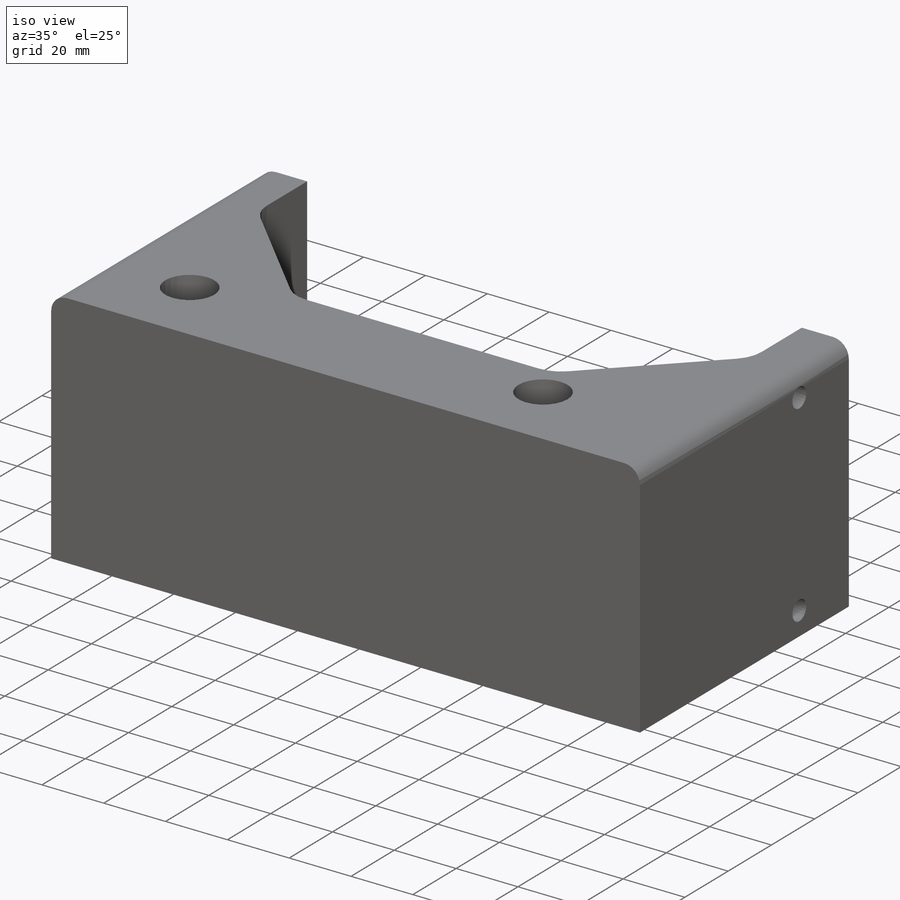
[diagram: iso view]
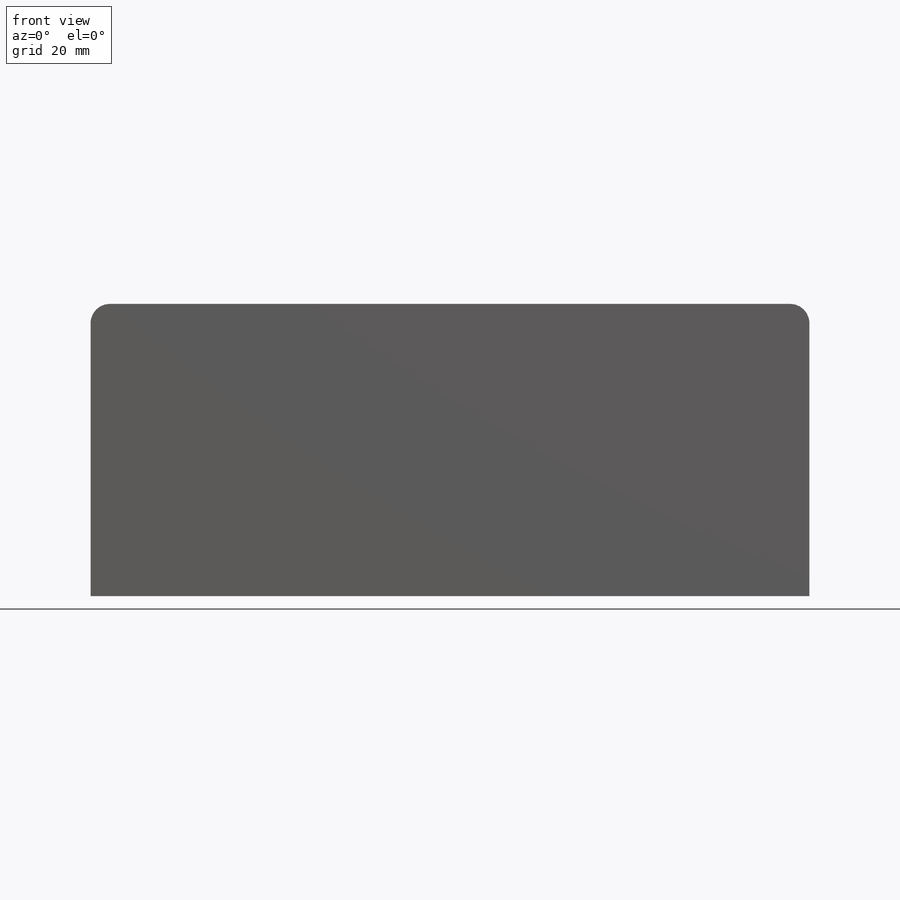
[diagram: front view]
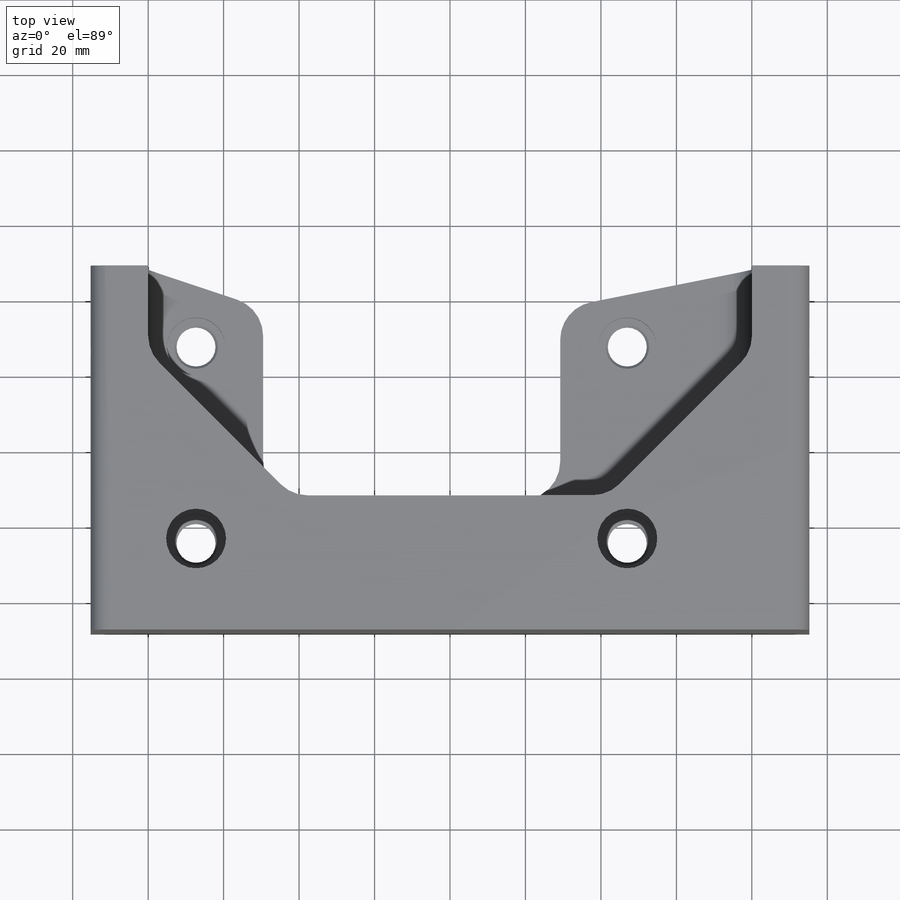
[diagram: top view]
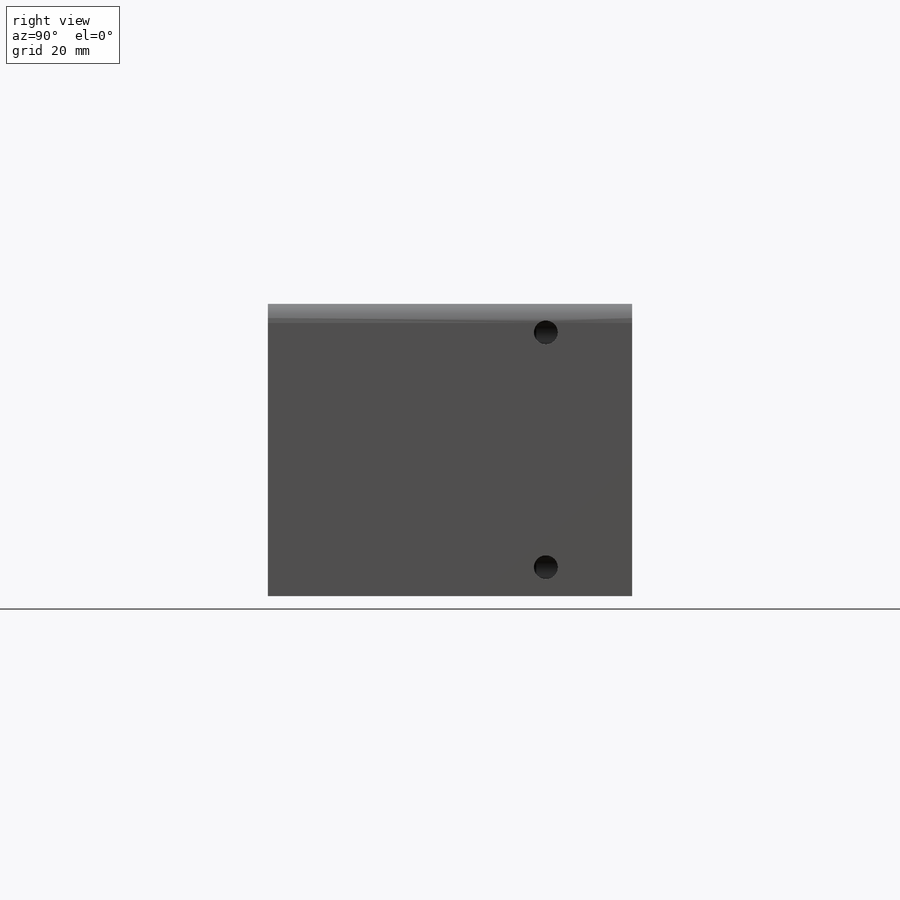
[diagram: right view]
SOLIDWORKS PART (.sldprt)
format: sldprt  version: not decoded by parser v0  size: 760,320 bytes
history: native  units: mm
features: sketch x19, cut_extrude x5, hole x5, fillet x5, extrude x4, thread x4, material x1 + 1 further entry (+10 scaffold rows collapsed)
feature tree (54):
  scaffold x10  (default folders/planes/origin — collapsed)
  material  "6061-T6 Al"
  "Origin"  ID=392984584
  sketch  "Sketch1"  dims[D1=190.5mm D2=96.52mm]
  extrude  "Extrude1"  Depth=77.47mm
  sketch  "Sketch3"  dims[D1=15.24mm D2=7.62mm]
  cut_extrude  "Extrude3"  Depth=86.36mm
  hole  "1/4-20 Tapped Hole1"  [1 undecoded]
  sketch  "Sketch9"  dims[D1=7.62mm D2=7.62mm D3=7.62mm D4=7.62mm D5=7.62mm D6=7.62mm D7=7.62mm D8=7.62mm]
  thread  "Hole Thread1"  Diameter=19.05mm  [1 undecoded]
  thread  "Hole Thread2"  Diameter=19.05mm  [1 undecoded]
  thread  "Hole Thread3"  Diameter=19.05mm  [1 undecoded]
  thread  "Hole Thread4"  Diameter=19.05mm  [1 undecoded]
  sketch  "Sketch8"  dims[hole-wizard template sketch: 40 standard entries collapsed; hole parameters kept: c13.Tap Drill Depth=25.4mm c13.Near C'Sink Dia.=7.62mm c13.D4=~33.297463mm c13.Near C'Sink Angle=90.0deg c14.D5=~14.816244mm c14.Drill Angle=118.0deg]
  sketch  "Sketch11"  dims[c1.D1=0.0mm c1.D2=10.16mm c1.D3=12.7mm c1.D4=12.7mm c2.D3=15.24mm c2.D4=15.24mm]
  cut_extrude  "Extrude5"  Depth=10mm
  sketch  "Sketch12"  dims[D1=63.5mm D2=63.5mm D3=63.5mm D4=63.5mm]
  extrude  "Extrude6"  Depth=7.62mm
  fillet  "Fillet11"  Radius=6.35mm
  hole  "CBORE for 3/8 Hex Machine Screw1"  Diameter=10.31748mm Depth=7.62mm
  sketch  "Sketch7"  dims[c1.D1=114.3mm c1.D2=26.67mm c1.D3=20.32mm c1.D4=20.32mm c1.D5=52.07mm c1.D6=52.07mm c1.D7=114.3mm c1.D8=26.67mm c2.D2=27.94mm]
  sketch  "Sketch6"  dims[hole-wizard template sketch: 42 standard entries collapsed; hole parameters kept: c12.Thru Hole Depth=7.62mm c12.C'Bore Dia.=15.494mm c12.C'Bore Depth=5.08mm c12.Mid C'Sink Dia.=~11.58748mm c12.D6=~5.388154mm c12.Mid C'Sink Angle=90.0deg c12.Far C'Sink Dia.=12.7mm c12.D8=~2.963249mm c12.Far C'Sink Angle=90.0deg c12.D9=~4.399409mm]
  sketch  "Sketch14"  dims[c1.D1=45.72mm c1.D2=71.12mm c1.D3=71.12mm c1.D4=30.48mm c2.D1=30.48mm c2.D2=50.8mm c2.D3=76.2mm c2.D4=76.2mm c2.D5=160.02mm c3.D5=~18.434949deg c4.D5=~32.128741mm c5.D5=~108.434949deg c6.D5=80.01mm]
  cut_extrude  "Extrude14"  Depth=6.35mm
  sketch  "Sketch15"  dims[D1=25.4mm]
  extrude  "Extrude15"  [1 undecoded]
  sketch  "Sketch16"  dims[D1=25.4mm D2=25.4mm]
  extrude  "Extrude16"  [1 undecoded]
  hole  "5/8 (0.625) Diameter Hole1"  Diameter=15.875mm Depth=7.62mm
  sketch  "Sketch18"  dims[c1.D1=~32.622146mm c1.D2=~23.007391mm c1.D3=~21.457279mm c1.D4=26.67mm c2.D3=72.39mm c2.D1=72.39mm c2.D2=114.3mm c2.D4=27.94mm]
  sketch  "Sketch17"  dims[hole-wizard template sketch: 60 standard entries collapsed; hole parameters kept: c18.Thru Hole Depth=7.62mm]
  fillet  "Fillet10"  Radius=1.27mm
  fillet  "Fillet7"  Radius=10.16mm
  fillet  "Fillet8"  Radius=5.08mm
  fillet  "Fillet9"  Radius=6.35mm
  hole  "1/4 (0.25) Diameter Hole1"  Diameter=6.35mm Depth=7.62mm
  sketch  "Sketch20"  dims[D1=62.23mm D2=7.62mm D3=25.4mm]
  sketch  "Sketch19"  dims[hole-wizard template sketch: 47 standard entries collapsed; hole parameters kept: c15.Hole Depth=7.62mm c15.D3=~14.816244mm c15.Drill Angle=118.0deg]
  hole  "1/4 (0.25) Diameter Hole2"  Diameter=6.35mm Depth=7.62mm
  sketch  "Sketch22"  dims[D1=62.23mm D2=7.62mm D3=25.4mm]
  sketch  "Sketch21"  dims[hole-wizard template sketch: 47 standard entries collapsed; hole parameters kept: c15.Hole Depth=7.62mm c15.D3=~14.816244mm c15.Drill Angle=118.0deg]
  sketch  "Sketch23"
  cut_extrude  "C-BORE FILLET CLEANUP"  Depth=2.54mm
  sketch  "Sketch24"  dims[D1=15.875mm]
  cut_extrude  "Hole  FILLET CLEANUP"  Depth=2.54mm
decode coverage: 38 of 42 modeling features carry decoded parameters; 1 rows unclassified (native names shown)
note: ~ marks probable driven/reference dimensions
note: 7 parameter values undecoded
summary: Diameter pulled from absorbed wizard sketch | no parameter record found for 3 features
note: suppression state not decoded; provenance and decode notes live in map.json
